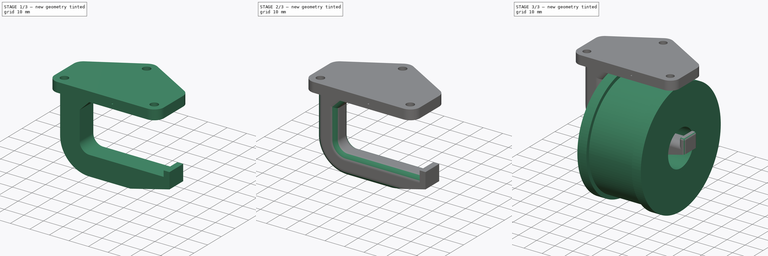
[diagram: build sequence overview — one tinted view per stage of 3, left to right]
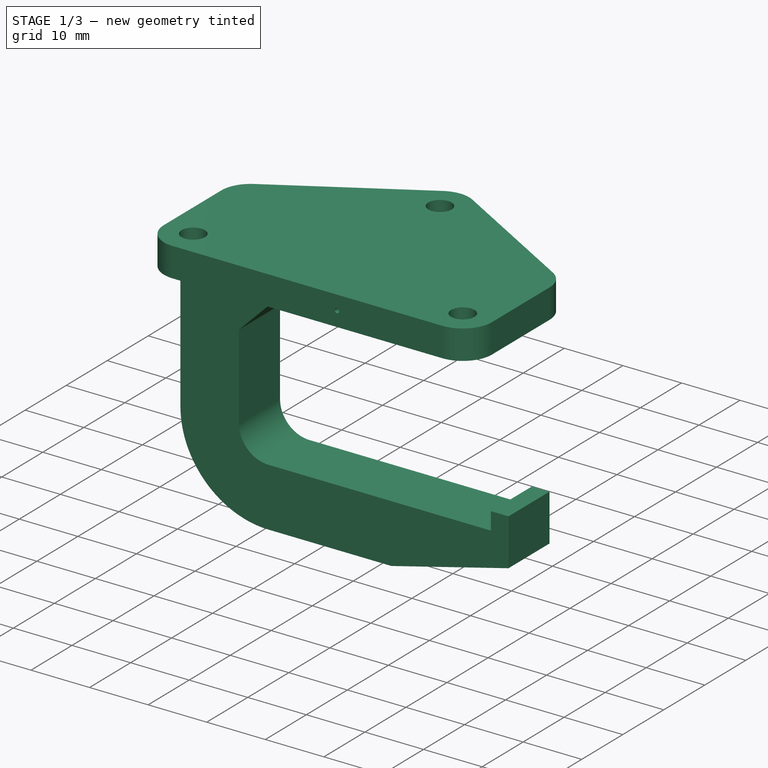
[diagram: stage 1 of 3 — iso view after this stage's code; geometry added in this stage tinted green]
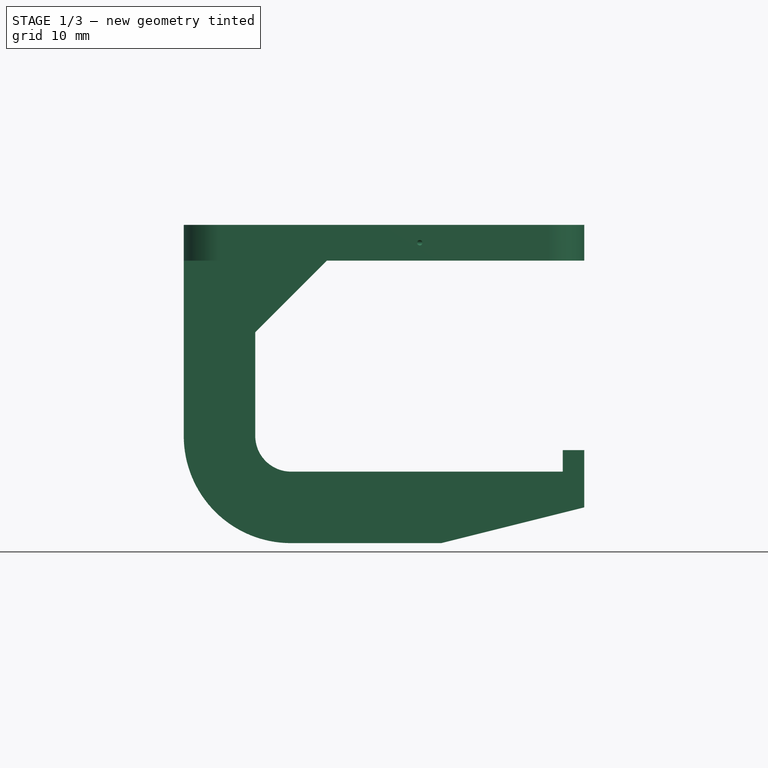
[diagram: stage 1 of 3 — front view after this stage's code; geometry added in this stage tinted green]
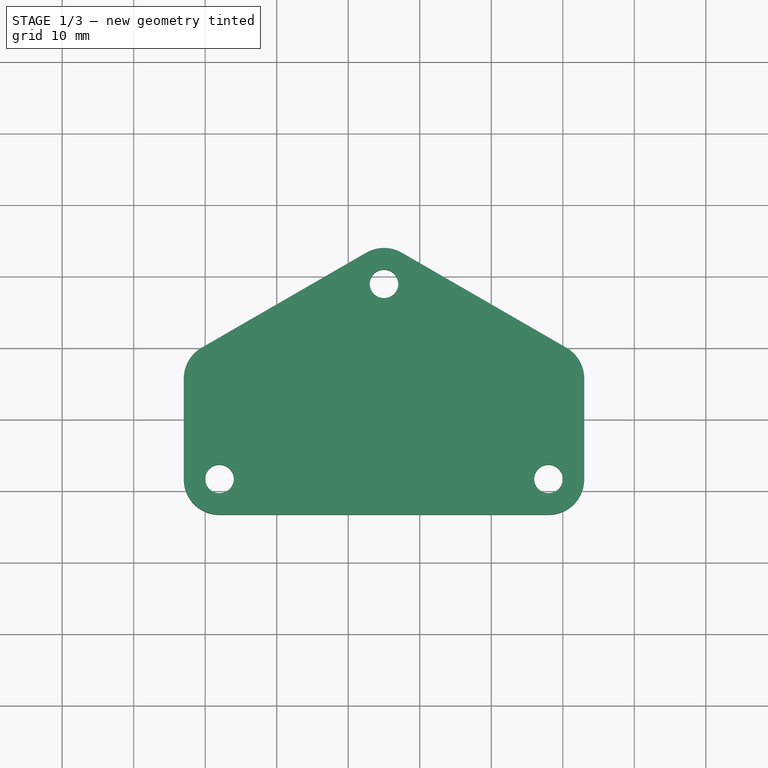
[diagram: stage 1 of 3 — top view after this stage's code; geometry added in this stage tinted green]
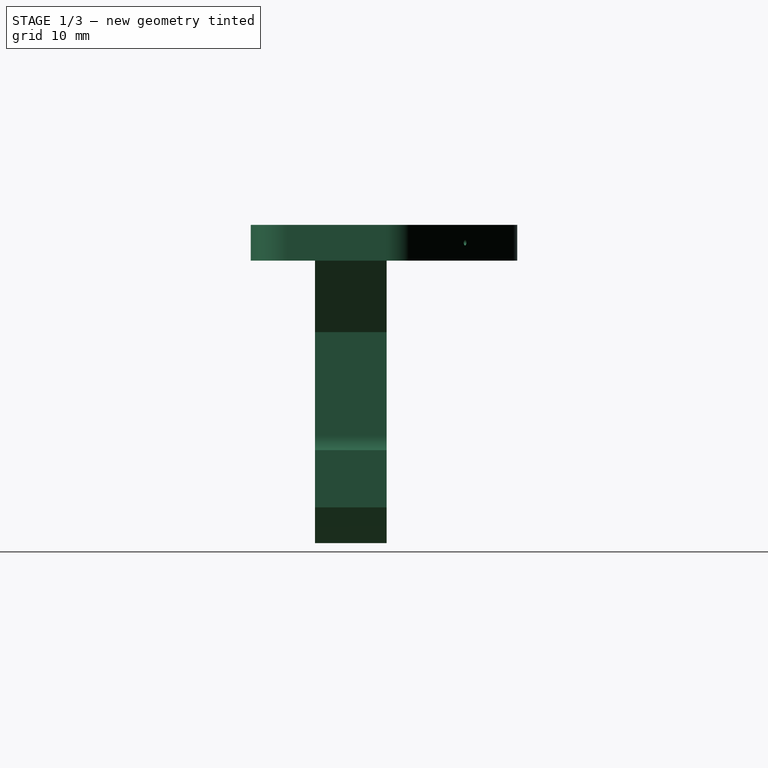
[diagram: stage 1 of 3 — right view after this stage's code; geometry added in this stage tinted green]
FCSTD DOCUMENT  (FreeCAD 1.0R38641 +468 (Git))
Label: sodler_dispenser
License: All rights reserved
LicenseURL: https://en.wikipedia.org/wiki/All_rights_reserved
objects: Sketcher::SketchObject×4, PartDesign::Body×2, App::Part×2, PartDesign::Pad×2, PartDesign::Fillet×2, PartDesign::Revolution×1, PartDesign::Mirrored×1, PartDesign::Pocket×1, PartDesign::Chamfer×1
note: 33 computed .brp shape members not serialized (recipe doc carries the construction recipe); baked Part::Feature solids carry a one-line shape summary decoded from their .brp

FEATURE [PartDesign::Body] Body
  AllowCompound = false
  Group = -> [Sketch,Revolution,Mirrored]
  Origin = -> Origin001
  Tip = -> Mirrored
FEATURE [App::Part] Part  label="solder_roll"
  Group = -> [Body]
  Origin = -> Origin
  Placement = pos=(0,0,-4) rot=(0,0,1;0rad)
FEATURE [Sketcher::SketchObject] Sketch001
  ArcFitTolerance = 1e-06
  AttachmentSupport = -> [XZ_Plane003]
  FullyConstrained = true
  MakeInternals = false
  MapMode = 5
  Placement = pos=(0,0,0) rot=(1,0,0;1.5708rad)
  sketch-geometry (17):
    g0: LineSegment StartX=3 StartY=-5 StartZ=0 EndX=-18 EndY=-5 EndZ=0
    g1: LineSegment StartX=-33 StartY=10 StartZ=0 EndX=-33 EndY=39.5 EndZ=0
    g2: LineSegment StartX=-33 StartY=39.5 StartZ=0 EndX=23 EndY=39.5 EndZ=0
    g3: LineSegment StartX=23 StartY=39.5 StartZ=0 EndX=23 EndY=34.5 EndZ=0
    g4: LineSegment StartX=20 StartY=5 StartZ=0 EndX=-18 EndY=5 EndZ=0
    g5: LineSegment StartX=-23 StartY=10 StartZ=0 EndX=-23 EndY=24.5 EndZ=0
    g6: LineSegment StartX=23 StartY=34.5 StartZ=0 EndX=-13 EndY=34.5 EndZ=0
    g7: LineSegment StartX=20 StartY=5 StartZ=0 EndX=20 EndY=8 EndZ=0
    g8: LineSegment StartX=20 StartY=8 StartZ=0 EndX=23 EndY=8 EndZ=0
    g9: LineSegment StartX=23 StartY=8 StartZ=0 EndX=23 EndY=0 EndZ=0
    g10: LineSegment StartX=3 StartY=-5 StartZ=0 EndX=23 EndY=0 EndZ=0
    g11: LineSegment [constr] StartX=20 StartY=5 StartZ=0 EndX=20 EndY=-0.75 EndZ=0
    g12: ArcOfCircle CenterX=-18 CenterY=10 CenterZ=0 NormalX=0 NormalY=0 NormalZ=1 AngleXU=0 Radius=5 StartAngle=3.14159 EndAngle=4.71239
    g13: GeomPoint [constr] X=-23 Y=5 Z=0
    g14: ArcOfCircle CenterX=-18 CenterY=10 CenterZ=0 NormalX=0 NormalY=0 NormalZ=1 AngleXU=0 Radius=15 StartAngle=3.14159 EndAngle=4.71239
    g15: GeomPoint [constr] X=-35 Y=-5 Z=0
    g16: LineSegment StartX=-23 StartY=24.5 StartZ=0 EndX=-13 EndY=34.5 EndZ=0
  constraints (46):
    c: Horizontal(g0)
    c: Vertical(g1)
    c: Coincident(g1,g2)
    c: Horizontal(g2)
    c: Coincident(g2,g3)
    c: Vertical(g3)
    c: Horizontal(g4)
    c: Vertical(g5)
    c: Coincident(g3,g6)
    c: Horizontal(g6)
    c: Distance(g3,g3) = 5
    c: Distance(g15,g5) = 12
    c: Coincident(g4,g7)
    c: Vertical(g7)
    c: Coincident(g7,g8)
    c: Horizontal(g8)
    c: Coincident(g8,g9)
    c: Vertical(g9)
    c: Coincident(g10,g0)
    c: Coincident(g10,g9)
    c: Distance(g4,g0) = 10
    c: Distance(g7,g7) = 3
    c: DistanceY(g9,g9) = 8
    c: Coincident(g11,g4)
    c: PointOnObject(g11,g10)
    c: Vertical(g11)
    c: Distance(g8,g8) = 3
    c: PointOnObject(g13,g4)
    c: PointOnObject(g13,g5)
    c: Tangent(g4,g12) = 1.5708
    c: Tangent(g5,g12) = 1.5708
    c: DistanceX(g-1,g4) = 20
    c: Distance(g-1,g0) = 5
    c: PointOnObject(g15,g0)
    c: Tangent(g0,g14) = 1.5708
    c: Tangent(g1,g14) = 1.5708
    c: Vertical(g3,g8)
    c: Distance(g7,g6) = 26.5
    c: Radius(g12) = 5
    c: DistanceX(g4,g4) = 38
    c: DistanceX(g10,g10) = 20
    c: Angle(g6,g16) = 0.785398
    c: Coincident(g6,g16)
    c: Coincident(g5,g16)
    c: DistanceY(g5,g6) = 10
    c: Coincident(g14,g12)
FEATURE [PartDesign::Pad] Pad
  Direction = (0,-1,2e-16)
  Length = 10
  Length2 = 10
  Midplane = true
  Placement = pos=(0,0,0) rot=(1,0,0;1.5708rad)
  Profile = -> Sketch001
  ReferenceAxis = -> Sketch001 [N_Axis]
  Refine = true
  Suppressed = false
  Type = 0
FEATURE [Sketcher::SketchObject] Sketch002
  ArcFitTolerance = 1e-06
  AttachmentSupport = -> [Pad]
  ExternalGeometry = -> [Pad]
  FullyConstrained = true
  MakeInternals = false
  MapMode = 5
  Placement = pos=(0,8.8e-15,39.5) rot=(0,0,1;3.14159rad)
  sketch-geometry (15):
    g0: ArcOfCircle CenterX=-18 CenterY=-5 CenterZ=0 NormalX=0 NormalY=0 NormalZ=1 AngleXU=0 Radius=5 StartAngle=3.14159 EndAngle=4.18879
    g1: ArcOfCircle CenterX=28 CenterY=-5 CenterZ=0 NormalX=0 NormalY=0 NormalZ=1 AngleXU=0 Radius=5 StartAngle=5.23599 EndAngle=6.28319
    g2: ArcOfCircle CenterX=5 CenterY=-18.2791 CenterZ=0 NormalX=0 NormalY=0 NormalZ=1 AngleXU=0 Radius=5 StartAngle=4.18879 EndAngle=5.23599
    g3: LineSegment StartX=-20.5 StartY=-9.33013 StartZ=0 EndX=2.5 EndY=-22.6092 EndZ=0
    g4: LineSegment StartX=7.5 StartY=-22.6092 StartZ=0 EndX=30.5 EndY=-9.33013 EndZ=0
    g5: Circle CenterX=5 CenterY=-18.2791 CenterZ=0 NormalX=0 NormalY=0 NormalZ=1 AngleXU=0 Radius=2
    g6: Circle CenterX=-18 CenterY=9 CenterZ=0 NormalX=0 NormalY=0 NormalZ=1 AngleXU=0 Radius=2
    g7: Circle CenterX=28 CenterY=9 CenterZ=0 NormalX=0 NormalY=0 NormalZ=1 AngleXU=0 Radius=2
    g8: LineSegment StartX=-23 StartY=-5 StartZ=0 EndX=-23 EndY=9 EndZ=0
    g9: LineSegment StartX=-18 StartY=14 StartZ=0 EndX=28 EndY=14 EndZ=0
    g10: LineSegment StartX=33 StartY=9 StartZ=0 EndX=33 EndY=-5 EndZ=0
    g11: ArcOfCircle CenterX=-18 CenterY=9 CenterZ=0 NormalX=0 NormalY=0 NormalZ=1 AngleXU=0 Radius=5 StartAngle=1.5708 EndAngle=3.14159
    g12: GeomPoint [constr] X=-23 Y=14 Z=0
    g13: ArcOfCircle CenterX=28 CenterY=9 CenterZ=0 NormalX=0 NormalY=0 NormalZ=1 AngleXU=0 Radius=5 StartAngle=0 EndAngle=1.5708
    g14: GeomPoint [constr] X=33 Y=14 Z=0
  constraints (37):
    c: PointOnObject(g0,g-3)
    c: Coincident(g0,g-3)
    c: PointOnObject(g1,g-3)
    c: Coincident(g1,g-3)
    c: Equal(g1,g0)
    c: Equal(g0,g2)
    c: Equal(g3,g4)
    c: Tangent(g3,g2) = -1.5708
    c: Tangent(g4,g2) = -1.5708
    c: Tangent(g3,g0) = -1.5708
    c: Tangent(g4,g1) = -1.5708
    c: Coincident(g5,g2)
    c: Equal(g7,g6)
    c: Equal(g6,g5)
    c: Horizontal(g6,g7)
    c: Coincident(g8,g0)
    c: Vertical(g8)
    c: Horizontal(g9)
    c: Coincident(g10,g1)
    c: Vertical(g10)
    c: DistanceX(g12,g6) = 5
    c: DistanceX(g7,g14) = 5
    c: Distance(g7,g9) = 5
    c: Diameter(g5) = 4
    c: Distance(g6,g-4) = 2
    c: Radius(g2) = 5
    c: Angle(g-3,g4) = 0.523599
    c: PointOnObject(g12,g8)
    c: PointOnObject(g12,g9)
    c: Tangent(g8,g11) = 1.5708
    c: Tangent(g9,g11) = 1.5708
    c: PointOnObject(g14,g9)
    c: PointOnObject(g14,g10)
    c: Tangent(g9,g13) = 1.5708
    c: Tangent(g10,g13) = 1.5708
    c: Equal(g11,g13)
    c: Radius(g13) = 5
FEATURE [PartDesign::Pad] Pad001
  BaseFeature = -> Pad
  Direction = (0,0,1)
  Length = 10
  Length2 = 10
  Placement = pos=(0,0,0) rot=(1,0,0;1.5708rad)
  Profile = -> Sketch002
  ReferenceAxis = -> Sketch002 [N_Axis]
  Refine = true
  Reversed = true
  Suppressed = false
  Type = 2
FEATURE [Sketcher::SketchObject] Sketch003
  ArcFitTolerance = 1e-06
  AttachmentSupport = -> [Pad001]
  ExternalGeometry = -> [Pad001]
  FullyConstrained = true
  MakeInternals = false
  MapMode = 5
  Placement = pos=(0,-14,0) rot=(1,0,0;1.5708rad)
  sketch-geometry (1):
    g0: Circle CenterX=-1e-16 CenterY=37 CenterZ=0 NormalX=0 NormalY=0 NormalZ=1 AngleXU=0 Radius=0.375
  constraints (3):
    c: Diameter(g0) = 0.75
    c: DistanceX(g0,g-3) = 18
    c: DistanceY(g-4,g0) = 2.5
FEATURE [PartDesign::Pocket] Pocket
  BaseFeature = -> Pad001
  Direction = (0.3,1,0)
  Length = 5
  Length2 = 5
  Placement = pos=(0,0,0) rot=(1,0,0;1.5708rad)
  Profile = -> Sketch003
  ReferenceAxis = -> Sketch003 [N_Axis]
  Refine = true
  Suppressed = false
  Type = 1
  UseCustomVector = true
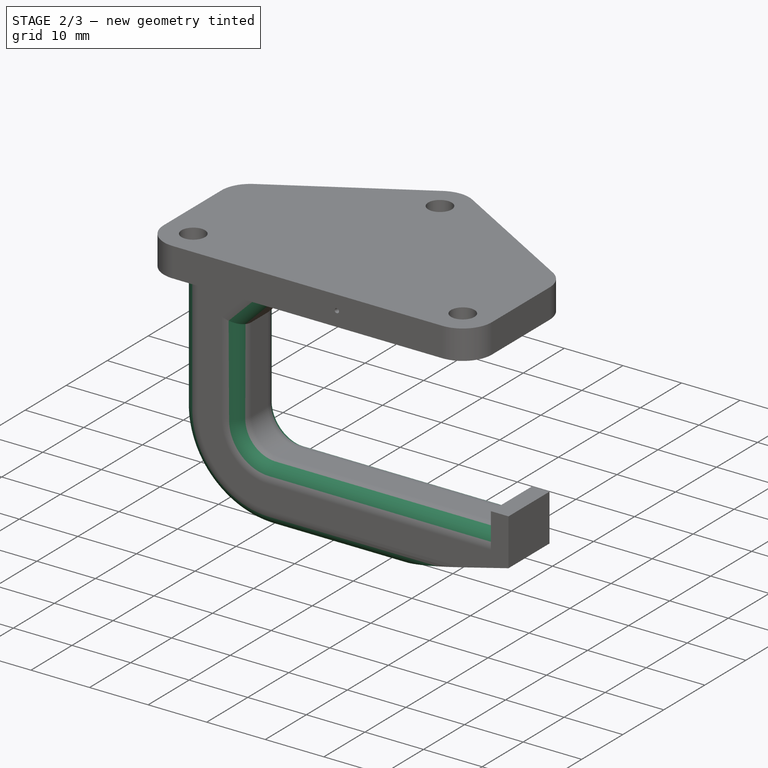
[diagram: stage 2 of 3 — iso view after this stage's code; geometry added in this stage tinted green]
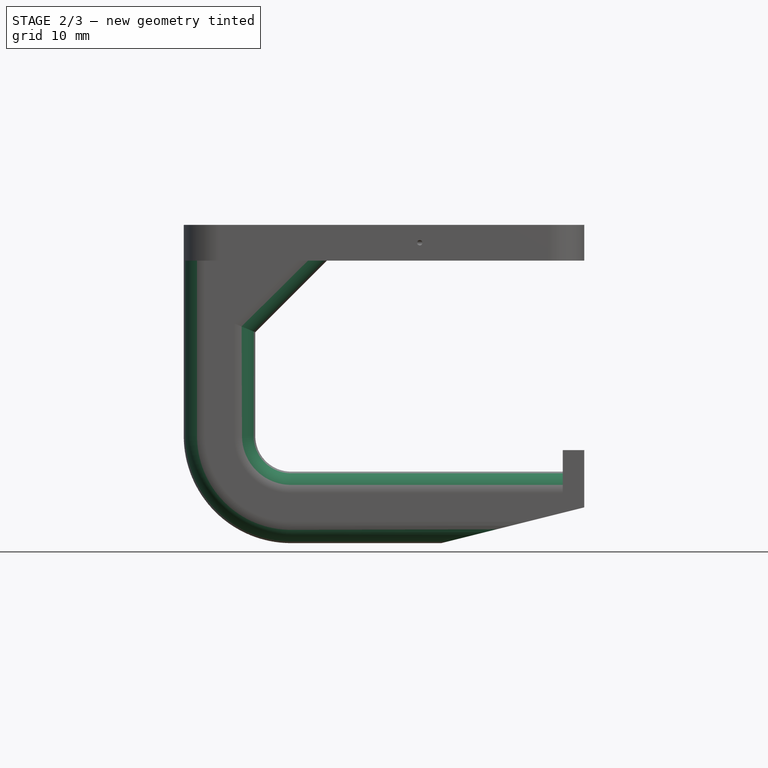
[diagram: stage 2 of 3 — front view after this stage's code; geometry added in this stage tinted green]
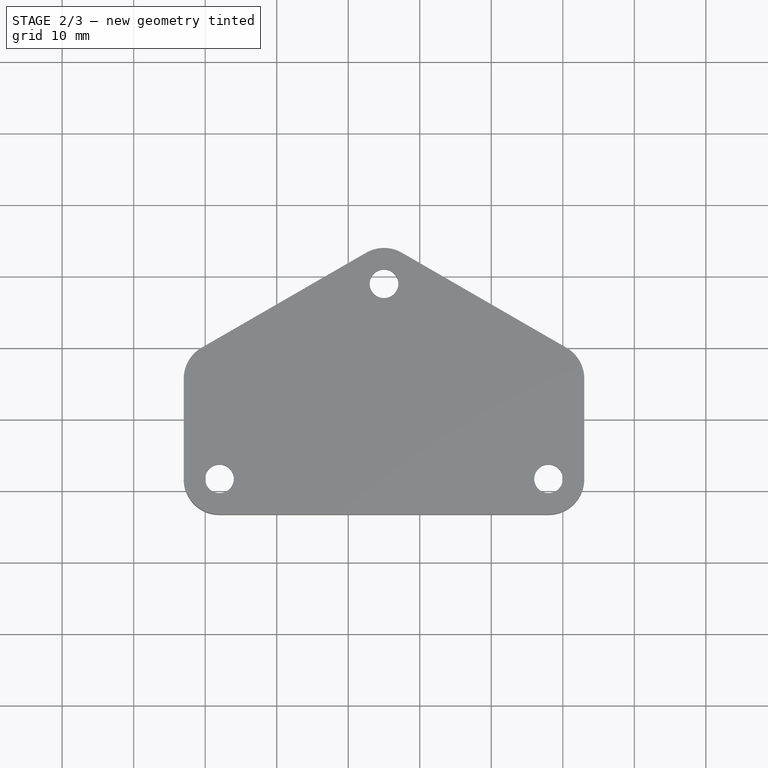
[diagram: stage 2 of 3 — top view after this stage's code; geometry added in this stage tinted green]
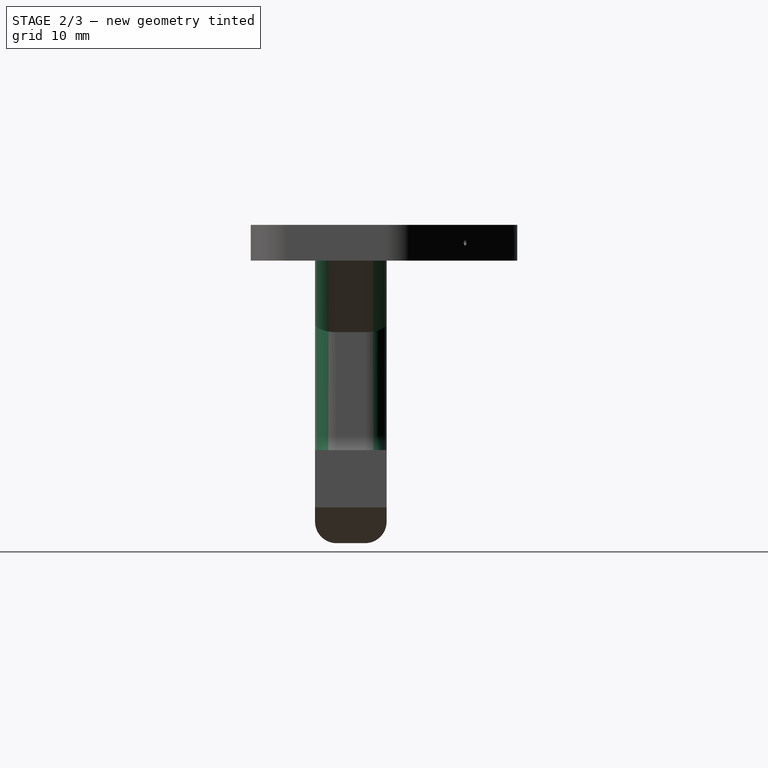
[diagram: stage 2 of 3 — right view after this stage's code; geometry added in this stage tinted green]
FEATURE [PartDesign::Chamfer] Chamfer
  Angle = 45
  Base = -> Pocket [Edge32,Edge33,Edge31]
  BaseFeature = -> Pocket
  ChamferType = 0
  FlipDirection = false
  Placement = pos=(0,0,0) rot=(1,0,0;1.5708rad)
  Refine = true
  Size = 2
  Size2 = 1
  SupportTransform = false
  Suppressed = false
  UseAllEdges = false
FEATURE [PartDesign::Fillet] Fillet
  Base = -> Chamfer [Edge48,Edge52,Edge41,Edge36,Edge39,Edge47]
  BaseFeature = -> Chamfer
  Placement = pos=(0,0,0) rot=(1,0,0;1.5708rad)
  Radius = 3
  Refine = true
  SupportTransform = false
  Suppressed = false
  UseAllEdges = false
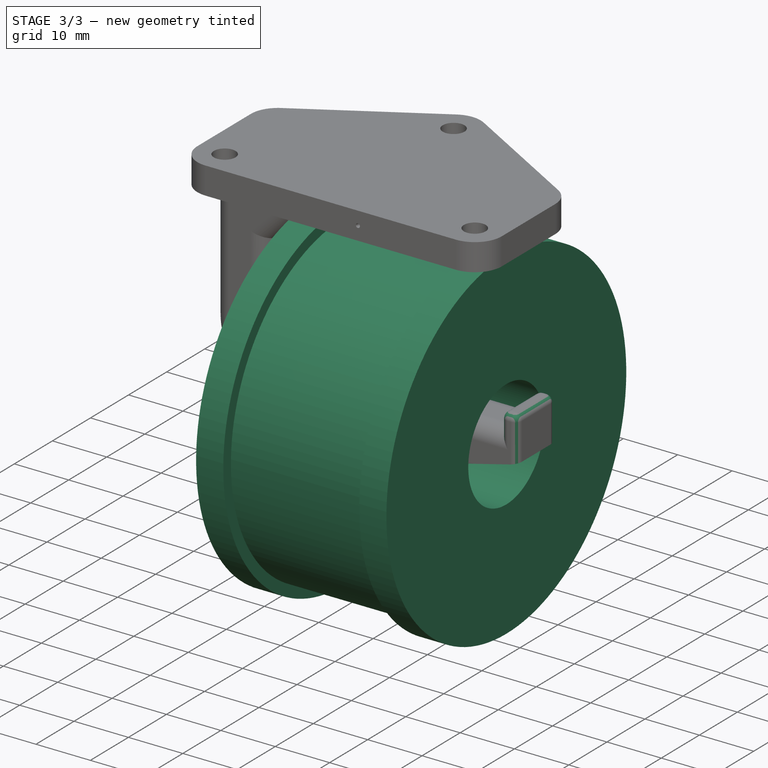
[diagram: stage 3 of 3 — iso view after this stage's code; geometry added in this stage tinted green]
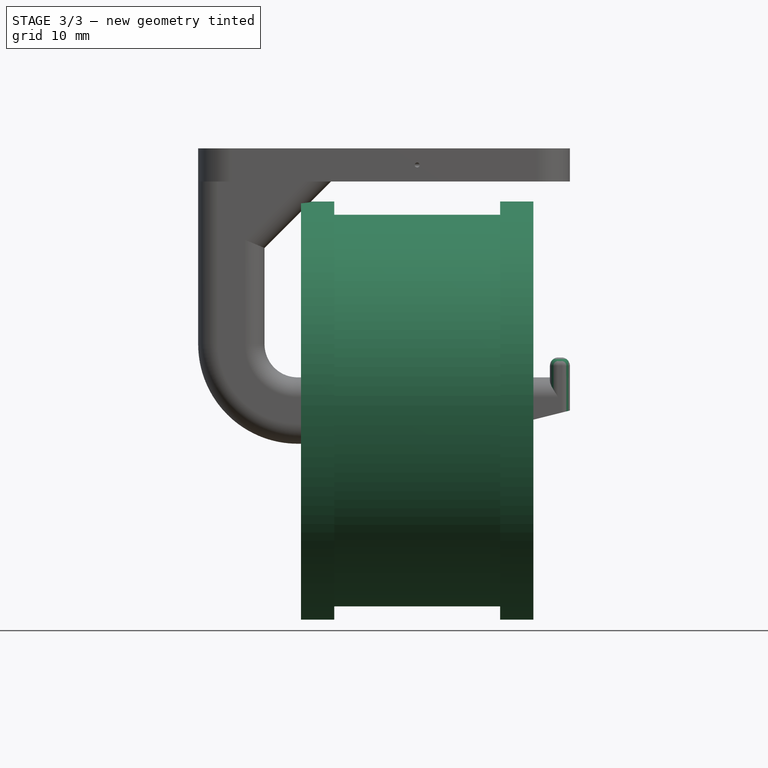
[diagram: stage 3 of 3 — front view after this stage's code; geometry added in this stage tinted green]
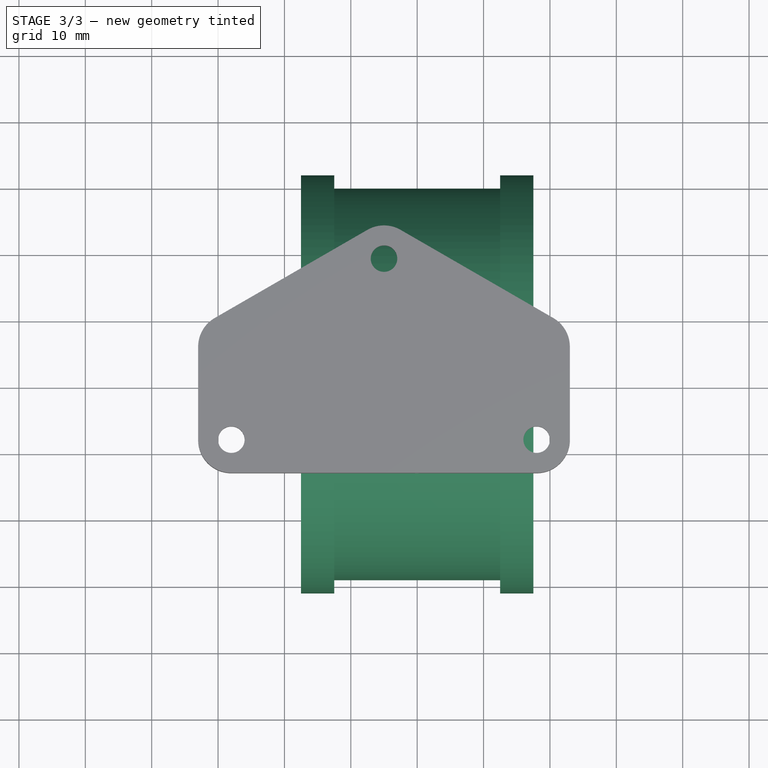
[diagram: stage 3 of 3 — top view after this stage's code; geometry added in this stage tinted green]
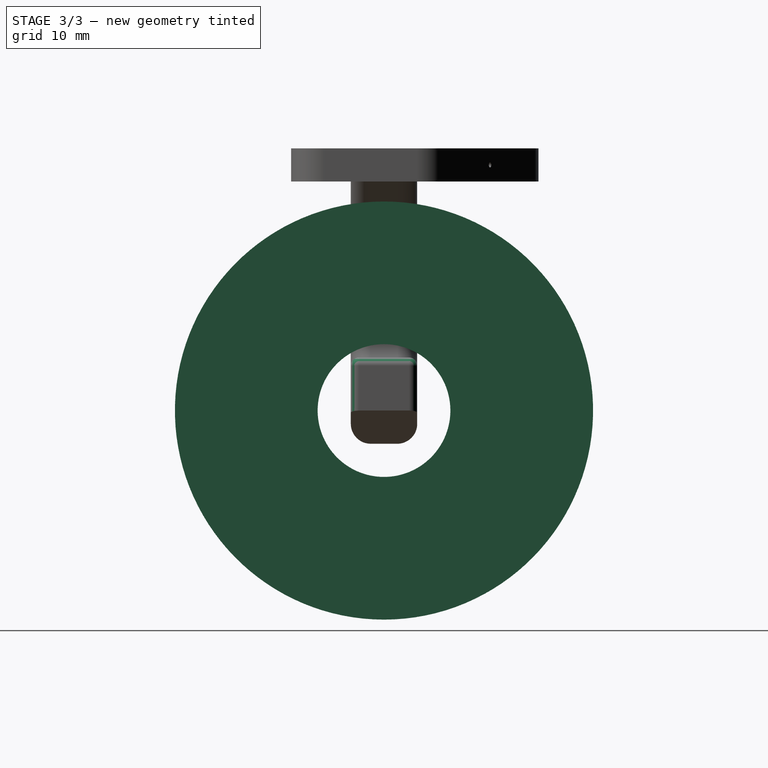
[diagram: stage 3 of 3 — right view after this stage's code; geometry added in this stage tinted green]
FEATURE [Sketcher::SketchObject] Sketch
  ArcFitTolerance = 1e-06
  AttachmentSupport = -> [XZ_Plane001]
  FullyConstrained = true
  MakeInternals = false
  MapMode = 5
  Placement = pos=(0,0,0) rot=(1,0,0;1.5708rad)
  expr: Constraints[17] = 63 / 2
  expr: Constraints[9] = 35 / 2
  sketch-geometry (6):
    g0: LineSegment StartX=-17.5 StartY=10 StartZ=0 EndX=-17.5 EndY=31.5 EndZ=0
    g1: LineSegment StartX=-17.5 StartY=31.5 StartZ=0 EndX=-12.5 EndY=31.5 EndZ=0
    g2: LineSegment StartX=-12.5 StartY=31.5 StartZ=0 EndX=-12.5 EndY=29.5 EndZ=0
    g3: LineSegment StartX=-12.5 StartY=29.5 StartZ=0 EndX=0 EndY=29.5 EndZ=0
    g4: LineSegment StartX=-17.5 StartY=10 StartZ=0 EndX=0 EndY=10 EndZ=0
    g5: LineSegment StartX=0 StartY=10 StartZ=0 EndX=0 EndY=29.5 EndZ=0
  constraints (18):
    c: Vertical(g0)
    c: Coincident(g0,g1)
    c: Horizontal(g1)
    c: Coincident(g1,g2)
    c: Vertical(g2)
    c: Coincident(g2,g3)
    c: Horizontal(g3)
    c: DistanceX(g1,g1) = 5
    c: Distance(g2,g2) = 2
    c: Distance(g0,g-2) = 17.5
    c: Coincident(g0,g4)
    c: Horizontal(g4)
    c: Coincident(g4,g5)
    c: Coincident(g5,g3)
    c: Vertical(g5)
    c: PointOnObject(g4,g-2)
    c: DistanceY(g-1,g4) = 10
    c: DistanceY(g-1,g0) = 31.5
FEATURE [PartDesign::Revolution] Revolution
  Angle = 360
  Angle2 = 60
  Axis = (1,0,0)
  Base = (0,0,0)
  Placement = pos=(0,0,0) rot=(1,0,0;1.5708rad)
  Profile = -> Sketch
  ReferenceAxis = -> Sketch [H_Axis]
  Refine = true
  Suppressed = false
  Type = 0
FEATURE [PartDesign::Mirrored] Mirrored
  BaseFeature = -> Revolution
  MirrorPlane = -> Sketch [V_Axis]
  Originals = -> [Revolution]
  Placement = pos=(0,0,0) rot=(1,0,0;1.5708rad)
  Refine = true
  Suppressed = false
  TransformMode = 0
FEATURE [PartDesign::Fillet] Fillet001
  Base = -> Fillet [Edge100,Edge58,Edge101,Edge34,Edge32,Edge56,Edge33,Edge57]
  BaseFeature = -> Fillet
  Placement = pos=(0,0,0) rot=(1,0,0;1.5708rad)
  Radius = 1.25
  Refine = true
  SupportTransform = false
  Suppressed = false
  UseAllEdges = false
FEATURE [PartDesign::Body] Body001
  AllowCompound = false
  Group = -> [Sketch001,Pad,Sketch002,Pad001,Sketch003,Pocket,Chamfer,Fillet,Fillet001]
  Origin = -> Origin003
  Tip = -> Fillet001
FEATURE [App::Part] Part001  label="holder"
  Group = -> [Body001]
  Origin = -> Origin002
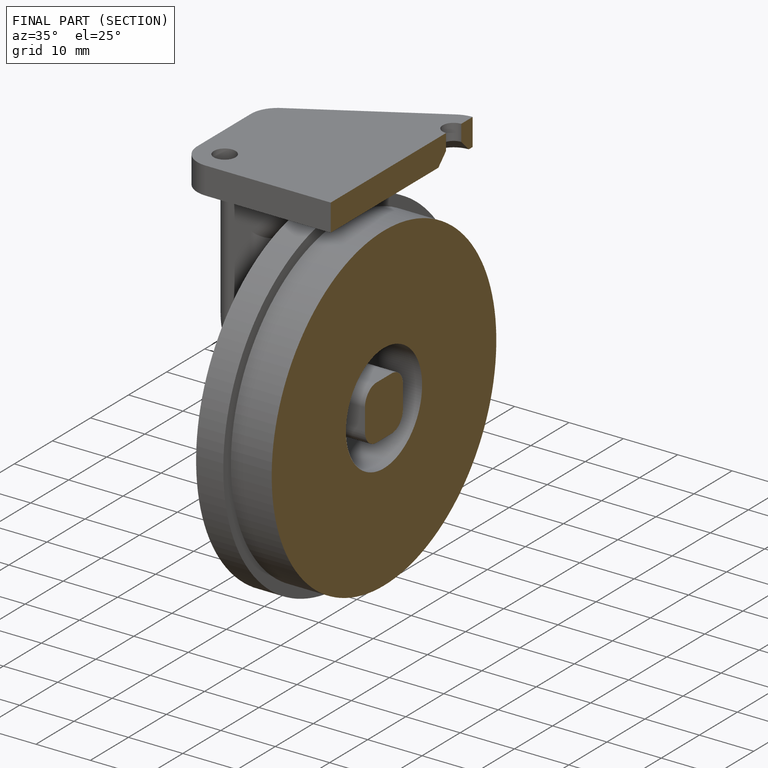
[diagram: finished part — half-section view (interior)]
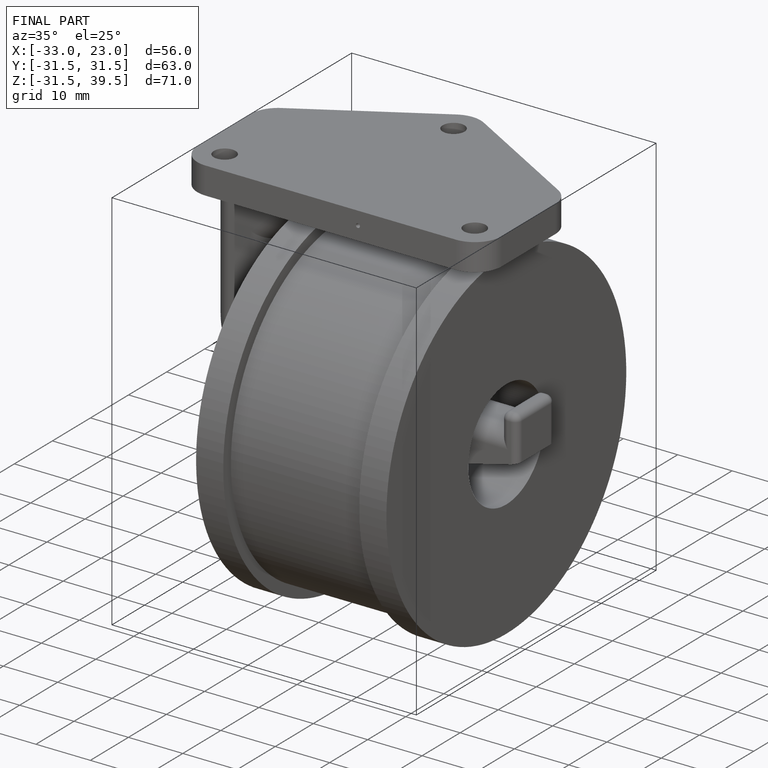
[diagram: finished part — iso view with bounding-box wireframe]
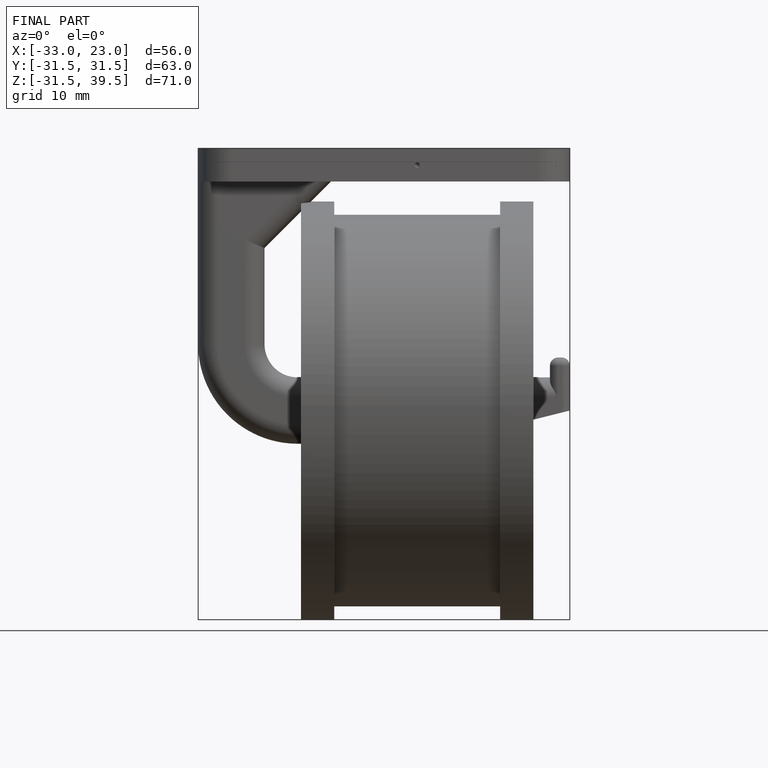
[diagram: finished part — front view with bounding-box wireframe]
